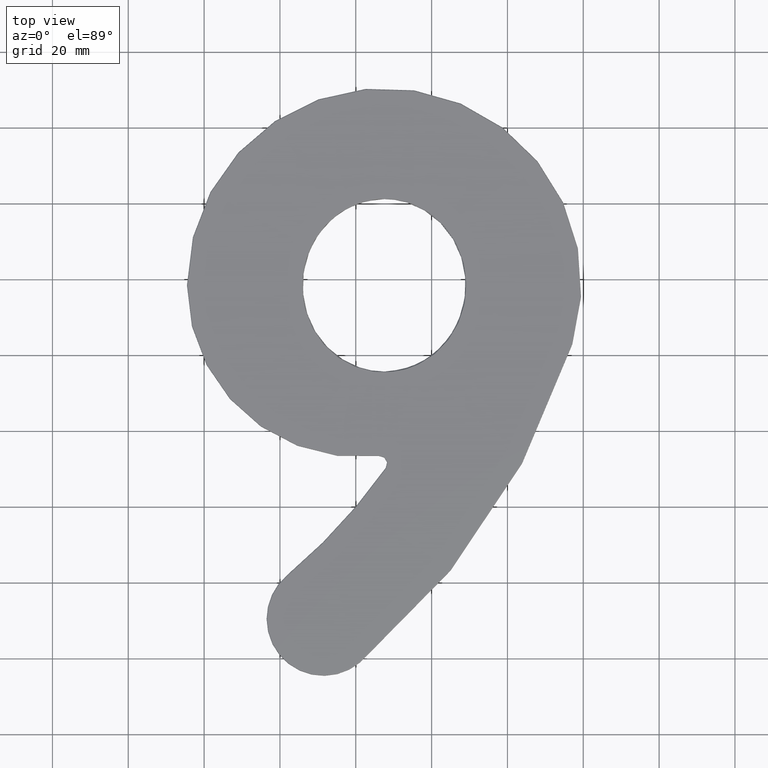
[diagram: clean part render]
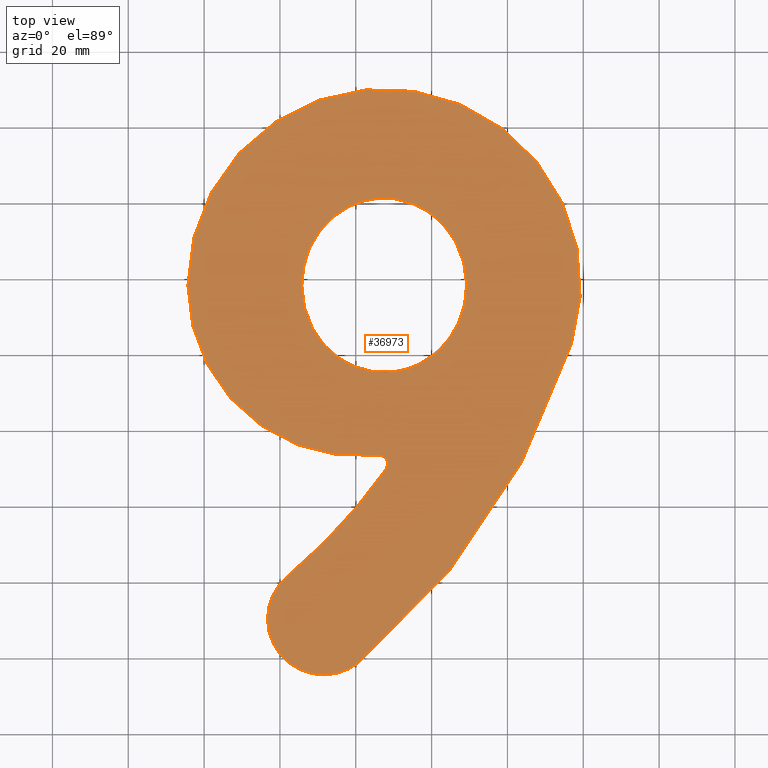
[diagram: same view with one face highlighted and labeled with its STEP entity id]
A machine part, top view. The second image highlights one B-rep face of the part: STEP entity #36973.
In plain terms, the highlighted planar face has unit normal (0, 0, -1).
Its self-contained STEP definition (entity closure, byte-faithful):
#630 = DIRECTION ( 'NONE',  ( -1.000000000000000000, 0.000000000000000000, 0.000000000000000000 ) ) ;
#848 = CARTESIAN_POINT ( 'NONE',  ( 26.60356240754121515, 74.65305052540136899, 2.000000000000000444 ) ) ;
#981 = CARTESIAN_POINT ( 'NONE',  ( 5.741387623704884646, 98.54224341530260745, 2.000000000000000000 ) ) ;
#1113 = CARTESIAN_POINT ( 'NONE',  ( 15.84905509562441139, 117.0934918589242244, 2.000000000000000000 ) ) ;
#1118 = CARTESIAN_POINT ( 'NONE',  ( 42.71171409916839679, 114.1416172044174573, 2.000000000000000000 ) ) ;
#1286 = CIRCLE ( 'NONE', #3410, 14.75000000000000355 ) ;
#1369 = CARTESIAN_POINT ( 'NONE',  ( 47.48503914473685228, 106.8084588406778579, 2.000000000000000444 ) ) ;
#1488 = EDGE_CURVE ( 'NONE', #32513, #21687, #5971, .T. ) ;
#1792 = CARTESIAN_POINT ( 'NONE',  ( 48.98066504602488180, 93.83783095582523970, 1.999999999999999556 ) ) ;
#1807 = CARTESIAN_POINT ( 'NONE',  ( 11.29314942010036837, 82.27345496451550844, 2.000000000000000444 ) ) ;
#1912 = FACE_BOUND ( 'NONE', #25218, .T. ) ;
#1948 = CARTESIAN_POINT ( 'NONE',  ( 5.779341306056038796, 99.27148203369745261, 2.000000000000000444 ) ) ;
#2813 = VERTEX_POINT ( 'NONE', #19450 ) ;
#3326 = CARTESIAN_POINT ( 'NONE',  ( -3.264008805142703196, 9.647383389896999617, 2.000000000000000000 ) ) ;
#3410 = AXIS2_PLACEMENT_3D ( 'NONE', #22136, #31087, #6838 ) ;
#3947 = CARTESIAN_POINT ( 'NONE',  ( 5.990469659084804555, 101.4461769737642101, 2.000000000000000000 ) ) ;
#3953 = CARTESIAN_POINT ( 'NONE',  ( 34.78820844227019649, 119.3158744330863357, 2.000000000000000444 ) ) ;
#4203 = CARTESIAN_POINT ( 'NONE',  ( 45.00717245999702953, 111.2955663162438782, 2.000000000000000000 ) ) ;
#4418 = VERTEX_POINT ( 'NONE', #26263 ) ;
#4589 = DIRECTION ( 'NONE',  ( -0.000000000000000000, -0.000000000000000000, -1.000000000000000000 ) ) ;
#4625 = DIRECTION ( 'NONE',  ( -1.000000000000000000, 0.000000000000000000, 0.000000000000000000 ) ) ;
#4743 = CARTESIAN_POINT ( 'NONE',  ( 49.23983733013270836, 98.23892796750136824, 1.999999999999999556 ) ) ;
#4893 = CARTESIAN_POINT ( 'NONE',  ( 5.945220148600223631, 94.14298716270197076, 1.999999999999999556 ) ) ;
#4905 = CARTESIAN_POINT ( 'NONE',  ( -41.57461744957618777, 72.82033496161213293, 2.000000000000000000 ) ) ;
#5015 = CARTESIAN_POINT ( 'NONE',  ( 47.04549866525275803, 87.56073094256187517, 1.999999999999999556 ) ) ;
#5030 = CARTESIAN_POINT ( 'NONE',  ( 24.41151258509957955, 74.86511623235223567, 2.000000000000000000 ) ) ;
#5295 = CARTESIAN_POINT ( 'NONE',  ( 22.50352061040110030, 120.0493673657555291, 2.000000000000000000 ) ) ;
#5971 = CIRCLE ( 'NONE', #35751, 14.75000000000000355 ) ;
#6388 = CIRCLE ( 'NONE', #12615, 45.06493529191630643 ) ;
#6510 = VERTEX_POINT ( 'NONE', #26581 ) ;
#6539 = EDGE_CURVE ( 'NONE', #2813, #23348, #6388, .T. ) ;
#6689 = CARTESIAN_POINT ( 'NONE',  ( -94.63522609400968122, 135.9932865333272787, 2.000000000000000000 ) ) ;
#6734 = CARTESIAN_POINT ( 'NONE',  ( 37.54540502284802272, 77.25150164484040261, 2.000000000000000000 ) ) ;
#6838 = DIRECTION ( 'NONE',  ( -1.000000000000000000, -1.764125568789972905E-15, 0.000000000000000000 ) ) ;
#6877 = CARTESIAN_POINT ( 'NONE',  ( 41.95970791900688113, 80.46266785047912151, 2.000000000000000000 ) ) ;
#7039 = CARTESIAN_POINT ( 'NONE',  ( 5.760374043617368045, 96.33460697604851930, 2.000000000000000000 ) ) ;
#7172 = CARTESIAN_POINT ( 'NONE',  ( 29.55567426940919162, 74.75174910600546241, 2.000000000000000000 ) ) ;
#7502 = CARTESIAN_POINT ( 'NONE',  ( 36.56411088950124366, 76.74296968460335222, 2.000000000000000000 ) ) ;
#7958 = CARTESIAN_POINT ( 'NONE',  ( 5.731663029921787000, 97.07490646728967931, 1.999999999999999556 ) ) ;
#8081 = CARTESIAN_POINT ( 'NONE',  ( 46.06311200271524342, 85.59393874774296762, 2.000000000000000000 ) ) ;
#8093 = CARTESIAN_POINT ( 'NONE',  ( 8.755204868907428661, 85.86352088205066480, 2.000000000000000000 ) ) ;
#8153 = DIRECTION ( 'NONE',  ( -1.000000000000000000, 0.000000000000000000, 0.000000000000000000 ) ) ;
#8485 = CARTESIAN_POINT ( 'NONE',  ( 19.71375848359266314, 119.1835849250452526, 2.000000000000000444 ) ) ;
#9937 = CARTESIAN_POINT ( 'NONE',  ( 26.14198494899618552, 120.6166041991618414, 2.000000000000000888 ) ) ;
#10057 = EDGE_CURVE ( 'NONE', #20240, #2813, #16867, .T. ) ;
#10063 = CARTESIAN_POINT ( 'NONE',  ( 9.668344075423206618, 110.9241531605688920, 2.000000000000000000 ) ) ;
#10066 = CARTESIAN_POINT ( 'NONE',  ( 38.71087805953717265, 117.3625169758746409, 1.999999999999999556 ) ) ;
#10203 = CARTESIAN_POINT ( 'NONE',  ( 39.32159003010425380, 116.9590775869581449, 1.999999999999999556 ) ) ;
#10327 = CARTESIAN_POINT ( 'NONE',  ( 22.60758544096729850, 75.22999534956821321, 2.000000000000000888 ) ) ;
#10617 = PLANE ( 'NONE',  #14296 ) ;
#10987 = CARTESIAN_POINT ( 'NONE',  ( 6.764687872487735731, 104.6469716394755523, 2.000000000000000444 ) ) ;
#11050 = DIRECTION ( 'NONE',  ( 0.000000000000000000, 0.000000000000000000, 1.000000000000000000 ) ) ;
#11126 = CARTESIAN_POINT ( 'NONE',  ( 7.233447037347766617, 106.0421489754282618, 2.000000000000000000 ) ) ;
#11135 = CARTESIAN_POINT ( 'NONE',  ( 11.48599119485730036, 9.647383389896999617, 2.000000000000000000 ) ) ;
#11284 = DIRECTION ( 'NONE',  ( -1.000000000000000000, 0.000000000000000000, 0.000000000000000000 ) ) ;
#11454 = ORIENTED_EDGE ( 'NONE', *, *, #35629, .T. ) ;
#11457 = CARTESIAN_POINT ( 'NONE',  ( 29.55567426940919162, 74.75174910600546241, 2.000000000000000000 ) ) ;
#12152 = AXIS2_PLACEMENT_3D ( 'NONE', #17548, #38773, #25874 ) ;
#12602 = B_SPLINE_CURVE_WITH_KNOTS ( 'NONE', 3,
 ( #7172, #20106, #38439, #848, #14078, #5030, #26393, #10327, #22210, #20235, #31420, #31688, #29447, #19320, #38564, #13365, #31550, #35538, #34603, #1807, #17040, #17317, #8093, #13246, #35274, #26254, #16197, #23158, #4893, #7039, #7958, #981, #1948, #3947, #29328, #10987, #35412, #17182, #11126, #32490, #28388, #28505, #10063, #37499, #16336, #37630, #19440, #1113, #22477, #25570, #8485, #23559, #5295, #23688, #20357, #35924 ),
 .UNSPECIFIED., .F., .F.,
 ( 4, 2, 2, 2, 2, 2, 2, 2, 2, 2, 2, 2, 2, 2, 2, 2, 2, 2, 2, 2, 2, 2, 2, 2, 2, 2, 2, 4 ),
 ( 0.1388905813732685401, 0.1410922286581529350, 0.1432938759430373021, 0.1454955232279216970, 0.1465963468703639083, 0.1476971705128060919, 0.1521004650825748816, 0.1543021123674592487, 0.1565037596523436436, 0.1587054069372280385, 0.1609070542221124334, 0.1653103487918812231, 0.1675119960767656457, 0.1697136433616500684, 0.1741169379314189136, 0.1763185852163033640, 0.1785202325011877866, 0.1829235270709566596, 0.1840243507133988432, 0.1851251743558410823, 0.1873268216407254771, 0.1917301162104943502, 0.1961334107802631954, 0.1983350580651476180, 0.2005367053500320407, 0.2049399999198009137, 0.2071416472046853363, 0.2093432944895697589 ),
 .UNSPECIFIED. ) ;
#12615 = AXIS2_PLACEMENT_3D ( 'NONE', #35978, #11050, #8153 ) ;
#12981 = EDGE_LOOP ( 'NONE', ( #14971, #27858, #14828, #27342, #20744, #17558, #30329 ) ) ;
#13116 = CARTESIAN_POINT ( 'NONE',  ( 40.50292161486917308, 116.0776277286008025, 1.999999999999999556 ) ) ;
#13246 = CARTESIAN_POINT ( 'NONE',  ( 7.801203016012504321, 87.83724934239619131, 2.000000000000000000 ) ) ;
#13365 = CARTESIAN_POINT ( 'NONE',  ( 14.43971294499962532, 79.22862309558026084, 1.999999999999999556 ) ) ;
#13588 = CARTESIAN_POINT ( 'NONE',  ( 36.22951989109951398, 76.58409468923167651, 2.000000000000000000 ) ) ;
#13782 = CARTESIAN_POINT ( 'NONE',  ( 49.02685038476091250, 101.1477114305040317, 2.000000000000000000 ) ) ;
#14067 = CARTESIAN_POINT ( 'NONE',  ( 47.87657396393365872, 89.60929763931720515, 1.999999999999999556 ) ) ;
#14078 = CARTESIAN_POINT ( 'NONE',  ( 25.86974638896499101, 74.69786451016715034, 2.000000000000000000 ) ) ;
#14296 = AXIS2_PLACEMENT_3D ( 'NONE', #4905, #31964, #4625 ) ;
#14371 = DIRECTION ( 'NONE',  ( -0.000000000000000000, -0.000000000000000000, -1.000000000000000000 ) ) ;
#14828 = ORIENTED_EDGE ( 'NONE', *, *, #17365, .T. ) ;
#14852 = CARTESIAN_POINT ( 'NONE',  ( 43.96542960789399501, 82.61821071263092620, 1.999999999999999556 ) ) ;
#14971 = ORIENTED_EDGE ( 'NONE', *, *, #31711, .T. ) ;
#15192 = CARTESIAN_POINT ( 'NONE',  ( 1.999397528125162138, 20.94194139817327383, 2.000000000000000000 ) ) ;
#15908 = CIRCLE ( 'NONE', #28759, 2.249999999999988010 ) ;
#15992 = VERTEX_POINT ( 'NONE', #25831 ) ;
#16075 = CARTESIAN_POINT ( 'NONE',  ( 26.87943627958370030, 120.6517187446349908, 2.000000000000000000 ) ) ;
#16197 = CARTESIAN_POINT ( 'NONE',  ( 6.772457254594380416, 90.59363605264272223, 2.000000000000000000 ) ) ;
#16201 = CARTESIAN_POINT ( 'NONE',  ( 41.07393555719095701, 115.6108446348082879, 2.000000000000000000 ) ) ;
#16336 = CARTESIAN_POINT ( 'NONE',  ( 12.45507769056856517, 114.3392241323750795, 2.000000000000000000 ) ) ;
#16341 = CARTESIAN_POINT ( 'NONE',  ( 37.45344871264776998, 118.1042846500485837, 2.000000000000000000 ) ) ;
#16743 = CARTESIAN_POINT ( 'NONE',  ( 48.77413099192608570, 102.5897911459321961, 2.000000000000000000 ) ) ;
#16867 = CIRCLE ( 'NONE', #12152, 51.75000000000002842 ) ;
#17040 = CARTESIAN_POINT ( 'NONE',  ( 10.82275898137165449, 82.84634285895084815, 1.999999999999999556 ) ) ;
#17182 = CARTESIAN_POINT ( 'NONE',  ( 7.108661847168739278, 105.6974500138303057, 2.000000000000000444 ) ) ;
#17317 = CARTESIAN_POINT ( 'NONE',  ( 9.508631942198672249, 84.61467528869057730, 2.000000000000000000 ) ) ;
#17365 = EDGE_CURVE ( 'NONE', #38046, #32513, #1286, .T. ) ;
#17548 = CARTESIAN_POINT ( 'NONE',  ( 27.48599119485729858, 97.64738338989700139, 2.000000000000000000 ) ) ;
#17554 = CARTESIAN_POINT ( 'NONE',  ( 45.29377454974465422, 84.35786235687876911, 2.000000000000000444 ) ) ;
#17558 = ORIENTED_EDGE ( 'NONE', *, *, #10057, .T. ) ;
#17663 = CARTESIAN_POINT ( 'NONE',  ( 26.02013998462786049, 52.88570107870119585, 2.000000000000000000 ) ) ;
#19047 = CARTESIAN_POINT ( 'NONE',  ( 32.69221214797608610, 120.0326745475553167, 1.999999999999999112 ) ) ;
#19187 = CARTESIAN_POINT ( 'NONE',  ( 31.26693689876221427, 120.3497502322597796, 2.000000000000000000 ) ) ;
#19320 = CARTESIAN_POINT ( 'NONE',  ( 16.23584561267220394, 77.94814997648154531, 2.000000000000000000 ) ) ;
#19440 = CARTESIAN_POINT ( 'NONE',  ( 14.65992858061038895, 116.2383014056302812, 2.000000000000000000 ) ) ;
#19450 = CARTESIAN_POINT ( 'NONE',  ( -24.26400880514272629, 97.64738338989700139, 2.000000000000000000 ) ) ;
#19923 = CARTESIAN_POINT ( 'NONE',  ( 76.85921771594213681, 82.14425457995538693, 2.000000000000000000 ) ) ;
#20090 = CARTESIAN_POINT ( 'NONE',  ( 46.53154419309023382, 108.7794668862117646, 2.000000000000000444 ) ) ;
#20106 = CARTESIAN_POINT ( 'NONE',  ( 28.81979357095482897, 74.67736497927064931, 2.000000000000000444 ) ) ;
#20235 = CARTESIAN_POINT ( 'NONE',  ( 21.54075349337118084, 75.51988833676041679, 2.000000000000000000 ) ) ;
#20240 = VERTEX_POINT ( 'NONE', #19923 ) ;
#20357 = CARTESIAN_POINT ( 'NONE',  ( 24.67807150515665882, 120.4681596417519103, 1.999999999999999556 ) ) ;
#20645 = EDGE_CURVE ( 'NONE', #4418, #38046, #31169, .T. ) ;
#20744 = ORIENTED_EDGE ( 'NONE', *, *, #38160, .T. ) ;
#21124 = CARTESIAN_POINT ( 'NONE',  ( 42.48775780832807669, 80.97660032568104782, 1.999999999999999556 ) ) ;
#21687 = VERTEX_POINT ( 'NONE', #30288 ) ;
#21898 = CARTESIAN_POINT ( 'NONE',  ( 40.31534947401481617, 79.01335564676838885, 2.000000000000000000 ) ) ;
#22136 = CARTESIAN_POINT ( 'NONE',  ( 11.48599119485730036, 9.647383389896999617, 2.000000000000000000 ) ) ;
#22210 = CARTESIAN_POINT ( 'NONE',  ( 22.24877122114139283, 75.32073265422400254, 2.000000000000000000 ) ) ;
#22211 = CARTESIAN_POINT ( 'NONE',  ( 34.44062149928841166, 119.4433997304353596, 2.000000000000000000 ) ) ;
#22477 = CARTESIAN_POINT ( 'NONE',  ( 16.47271326161042282, 117.4957134706365736, 2.000000000000000000 ) ) ;
#22480 = CARTESIAN_POINT ( 'NONE',  ( 43.69212802792465311, 113.0601479570869543, 2.000000000000000444 ) ) ;
#23005 = CARTESIAN_POINT ( 'NONE',  ( 49.21103082820160779, 98.96851211303669515, 1.999999999999999556 ) ) ;
#23158 = CARTESIAN_POINT ( 'NONE',  ( 6.198289359985119873, 92.70775406849760714, 1.999999999999999556 ) ) ;
#23348 = VERTEX_POINT ( 'NONE', #17663 ) ;
#23461 = ORIENTED_EDGE ( 'NONE', *, *, #31594, .T. ) ;
#23559 = CARTESIAN_POINT ( 'NONE',  ( 21.79528844957774325, 119.8594733766977782, 2.000000000000000444 ) ) ;
#23688 = CARTESIAN_POINT ( 'NONE',  ( 23.95018867250917083, 120.3548423495934827, 2.000000000000000444 ) ) ;
#25090 = DIRECTION ( 'NONE',  ( 0.000000000000000000, 0.000000000000000000, 1.000000000000000000 ) ) ;
#25218 = EDGE_LOOP ( 'NONE', ( #11454, #23461 ) ) ;
#25256 = CIRCLE ( 'NONE', #35497, 179.7500000000000000 ) ;
#25320 = CARTESIAN_POINT ( 'NONE',  ( 35.47192939393875832, 119.0444623116544562, 2.000000000000000000 ) ) ;
#25570 = CARTESIAN_POINT ( 'NONE',  ( 18.38322071909665212, 118.5923840671909772, 2.000000000000000000 ) ) ;
#25831 = CARTESIAN_POINT ( 'NONE',  ( 25.40979987642216997, 120.5423587651180384, 2.000000000000000000 ) ) ;
#25874 = DIRECTION ( 'NONE',  ( -1.000000000000000000, 8.045094381341709359E-16, 0.000000000000000000 ) ) ;
#26254 = CARTESIAN_POINT ( 'NONE',  ( 6.996487127315350385, 89.89542776534761970, 2.000000000000000000 ) ) ;
#26263 = CARTESIAN_POINT ( 'NONE',  ( 28.11897388511615148, 49.35340606546894549, 2.000000000000000000 ) ) ;
#26367 = DIRECTION ( 'NONE',  ( -1.000000000000000000, 0.000000000000000000, 0.000000000000000000 ) ) ;
#26383 = CARTESIAN_POINT ( 'NONE',  ( 48.10880087538834715, 90.30248253210876896, 2.000000000000000000 ) ) ;
#26393 = CARTESIAN_POINT ( 'NONE',  ( 23.68709508736559854, 74.98755634480461651, 2.000000000000000444 ) ) ;
#26581 = CARTESIAN_POINT ( 'NONE',  ( 29.55567426940919162, 74.75174910600546241, 2.000000000000000000 ) ) ;
#27171 = CARTESIAN_POINT ( 'NONE',  ( 43.49339849754109366, 82.05753070504241009, 2.000000000000000000 ) ) ;
#27342 = ORIENTED_EDGE ( 'NONE', *, *, #1488, .T. ) ;
#27858 = ORIENTED_EDGE ( 'NONE', *, *, #20645, .T. ) ;
#28076 = CARTESIAN_POINT ( 'NONE',  ( 37.22215327754299352, 77.07676660298805871, 2.000000000000000000 ) ) ;
#28388 = CARTESIAN_POINT ( 'NONE',  ( 7.925180853378760659, 107.7307989233911485, 2.000000000000000000 ) ) ;
#28392 = CARTESIAN_POINT ( 'NONE',  ( 36.80673243079750989, 118.4426149145166391, 1.999999999999999556 ) ) ;
#28505 = CARTESIAN_POINT ( 'NONE',  ( 8.899398522669709877, 109.6831102154066144, 2.000000000000000000 ) ) ;
#28509 = CARTESIAN_POINT ( 'NONE',  ( 35.80908334506919743, 118.9002451118069672, 1.999999999999999556 ) ) ;
#28646 = CARTESIAN_POINT ( 'NONE',  ( 45.42116290625677522, 110.6802321857201008, 2.000000000000000000 ) ) ;
#28759 = AXIS2_PLACEMENT_3D ( 'NONE', #38666, #4589, #26367 ) ;
#28853 = B_SPLINE_CURVE_WITH_KNOTS ( 'NONE', 3,
 ( #37501, #9937, #16075, #37385, #34867, #19187, #19047, #22211, #3953, #25320, #28509, #28392, #16341, #10066, #10203, #31424, #13116, #16201, #37634, #1118, #22480, #4203, #28646, #31692, #20090, #1369, #37875, #16743, #13782, #23005, #4743, #29437, #32218, #1792, #29318, #26383, #14067, #38425, #5015, #8081, #17554, #14852, #27171, #21124, #6877, #21898, #31379, #6734, #28076, #7502, #13588, #37467, #37713, #29513, #38626, #11457 ),
 .UNSPECIFIED., .F., .F.,
 ( 4, 2, 2, 2, 2, 2, 2, 2, 2, 2, 2, 2, 2, 2, 2, 2, 2, 2, 2, 2, 2, 2, 2, 2, 2, 2, 2, 4 ),
 ( 0.06839389586566507750, 0.07059691728777764408, 0.07279993870989021065, 0.07720598155411535768, 0.07830749226517165484, 0.07940900297622793813, 0.08161202439834056022, 0.08381504582045318230, 0.08491655653150952110, 0.08601806724256585990, 0.09042411008679113182, 0.09262713150890376779, 0.09483015293101640375, 0.09923619577524164792, 0.1036422386194668921, 0.1058452600415795003, 0.1080482814636921224, 0.1124543243079173527, 0.1146573457300299748, 0.1168603671521425830, 0.1212664099963677855, 0.1234694314184803798, 0.1256724528405929742, 0.1300784956848182183, 0.1311800063958745155, 0.1322815171069308127, 0.1344845385290433515, 0.1388905813732685401 ),
 .UNSPECIFIED. ) ;
#29318 = CARTESIAN_POINT ( 'NONE',  ( 48.70877170620904906, 92.40524727539853700, 1.999999999999999556 ) ) ;
#29328 = CARTESIAN_POINT ( 'NONE',  ( 6.260003381937254474, 102.8787339658348259, 2.000000000000000000 ) ) ;
#29437 = CARTESIAN_POINT ( 'NONE',  ( 49.23132452778715162, 96.77329791654922531, 1.999999999999999556 ) ) ;
#29447 = CARTESIAN_POINT ( 'NONE',  ( 18.13395462210774767, 76.82549023670794952, 1.999999999999999556 ) ) ;
#29513 = CARTESIAN_POINT ( 'NONE',  ( 32.45699668359327461, 75.20365896766126923, 2.000000000000000444 ) ) ;
#30288 = CARTESIAN_POINT ( 'NONE',  ( 20.97258486158924384, -1.647174618379442013, 2.000000000000000000 ) ) ;
#30329 = ORIENTED_EDGE ( 'NONE', *, *, #6539, .T. ) ;
#31087 = DIRECTION ( 'NONE',  ( 0.000000000000000000, 0.000000000000000000, 1.000000000000000000 ) ) ;
#31169 = CIRCLE ( 'NONE', #36445, 150.2499999999999716 ) ;
#31379 = CARTESIAN_POINT ( 'NONE',  ( 39.13363469915282167, 78.16324842380538485, 1.999999999999999556 ) ) ;
#31420 = CARTESIAN_POINT ( 'NONE',  ( 21.19062814499026359, 75.62849315990538912, 2.000000000000000000 ) ) ;
#31424 = CARTESIAN_POINT ( 'NONE',  ( 40.21041577238828069, 116.3046544957425397, 1.999999999999999112 ) ) ;
#31550 = CARTESIAN_POINT ( 'NONE',  ( 13.87523766522620328, 79.69152177321620911, 1.999999999999999556 ) ) ;
#31594 = EDGE_CURVE ( 'NONE', #15992, #6510, #28853, .T. ) ;
#31688 = CARTESIAN_POINT ( 'NONE',  ( 19.45900488327488276, 76.21568964241346578, 2.000000000000000000 ) ) ;
#31692 = CARTESIAN_POINT ( 'NONE',  ( 46.18277923035660137, 109.4226197908342897, 1.999999999999999556 ) ) ;
#31711 = EDGE_CURVE ( 'NONE', #23348, #4418, #15908, .T. ) ;
#31964 = DIRECTION ( 'NONE',  ( -0.000000000000000000, 0.000000000000000000, -1.000000000000000000 ) ) ;
#32218 = CARTESIAN_POINT ( 'NONE',  ( 49.19353397659541116, 96.03349890658790855, 1.999999999999999556 ) ) ;
#32490 = CARTESIAN_POINT ( 'NONE',  ( 7.630422348846238378, 107.0646221097018866, 1.999999999999999556 ) ) ;
#32513 = VERTEX_POINT ( 'NONE', #3326 ) ;
#32652 = CARTESIAN_POINT ( 'NONE',  ( -94.63522609400968122, 135.9932865333272787, 2.000000000000000000 ) ) ;
#34603 = CARTESIAN_POINT ( 'NONE',  ( 12.27793692747323107, 81.18720467933341922, 2.000000000000000000 ) ) ;
#34867 = CARTESIAN_POINT ( 'NONE',  ( 29.08987311856235891, 120.5977471072123990, 1.999999999999999556 ) ) ;
#35141 = DIRECTION ( 'NONE',  ( 0.000000000000000000, 0.000000000000000000, 1.000000000000000000 ) ) ;
#35274 = CARTESIAN_POINT ( 'NONE',  ( 7.512575667342609620, 88.51255359707013781, 1.999999999999999556 ) ) ;
#35277 = DIRECTION ( 'NONE',  ( -1.000000000000000000, 0.000000000000000000, 0.000000000000000000 ) ) ;
#35412 = CARTESIAN_POINT ( 'NONE',  ( 6.874362061093155063, 105.0002048929792267, 1.999999999999999556 ) ) ;
#35497 = AXIS2_PLACEMENT_3D ( 'NONE', #6689, #25090, #630 ) ;
#35538 = CARTESIAN_POINT ( 'NONE',  ( 12.79434785787721829, 80.67081056327363342, 1.999999999999999556 ) ) ;
#35629 = EDGE_CURVE ( 'NONE', #6510, #15992, #12602, .T. ) ;
#35751 = AXIS2_PLACEMENT_3D ( 'NONE', #11135, #35141, #35277 ) ;
#35924 = CARTESIAN_POINT ( 'NONE',  ( 25.40979987642216997, 120.5423587651180384, 2.000000000000000000 ) ) ;
#35978 = CARTESIAN_POINT ( 'NONE',  ( 20.80092648677360856, 97.64738338989700139, 2.000000000000000000 ) ) ;
#36445 = AXIS2_PLACEMENT_3D ( 'NONE', #32652, #14371, #11284 ) ;
#36705 = FACE_OUTER_BOUND ( 'NONE', #12981, .T. ) ;
#36973 = ADVANCED_FACE ( 'NONE', ( #1912, #36705 ), #10617, .F. ) ;
#37385 = CARTESIAN_POINT ( 'NONE',  ( 28.35761143940359830, 120.6421940635313490, 1.999999999999999556 ) ) ;
#37467 = CARTESIAN_POINT ( 'NONE',  ( 35.22080653040524112, 76.13703836947597381, 1.999999999999999556 ) ) ;
#37499 = CARTESIAN_POINT ( 'NONE',  ( 11.46109617884137677, 113.2716767087667336, 2.000000000000000000 ) ) ;
#37501 = CARTESIAN_POINT ( 'NONE',  ( 25.40979987642216997, 120.5423587651180384, 2.000000000000000000 ) ) ;
#37630 = CARTESIAN_POINT ( 'NONE',  ( 14.09052913375260019, 115.7833228973157418, 2.000000000000000444 ) ) ;
#37634 = CARTESIAN_POINT ( 'NONE',  ( 41.35251897150959621, 115.3711169071306415, 2.000000000000000444 ) ) ;
#37713 = CARTESIAN_POINT ( 'NONE',  ( 34.53769991504933046, 75.87622304046838906, 2.000000000000000000 ) ) ;
#37875 = CARTESIAN_POINT ( 'NONE',  ( 47.99780486250114109, 105.4394285207171578, 2.000000000000000000 ) ) ;
#38046 = VERTEX_POINT ( 'NONE', #15192 ) ;
#38160 = EDGE_CURVE ( 'NONE', #21687, #20240, #25256, .T. ) ;
#38425 = CARTESIAN_POINT ( 'NONE',  ( 47.34540869038750088, 88.23893838671082790, 2.000000000000000000 ) ) ;
#38439 = CARTESIAN_POINT ( 'NONE',  ( 28.08079553343385726, 74.64272177252188101, 2.000000000000000000 ) ) ;
#38564 = CARTESIAN_POINT ( 'NONE',  ( 15.61818303967267418, 78.35794079495616415, 1.999999999999999556 ) ) ;
#38626 = CARTESIAN_POINT ( 'NONE',  ( 31.02835425220603938, 74.90061021176666145, 2.000000000000000000 ) ) ;
#38666 = CARTESIAN_POINT ( 'NONE',  ( 26.28072463418083871, 50.65084187946349914, 2.000000000000000000 ) ) ;
#38773 = DIRECTION ( 'NONE',  ( 0.000000000000000000, 0.000000000000000000, 1.000000000000000000 ) ) ;